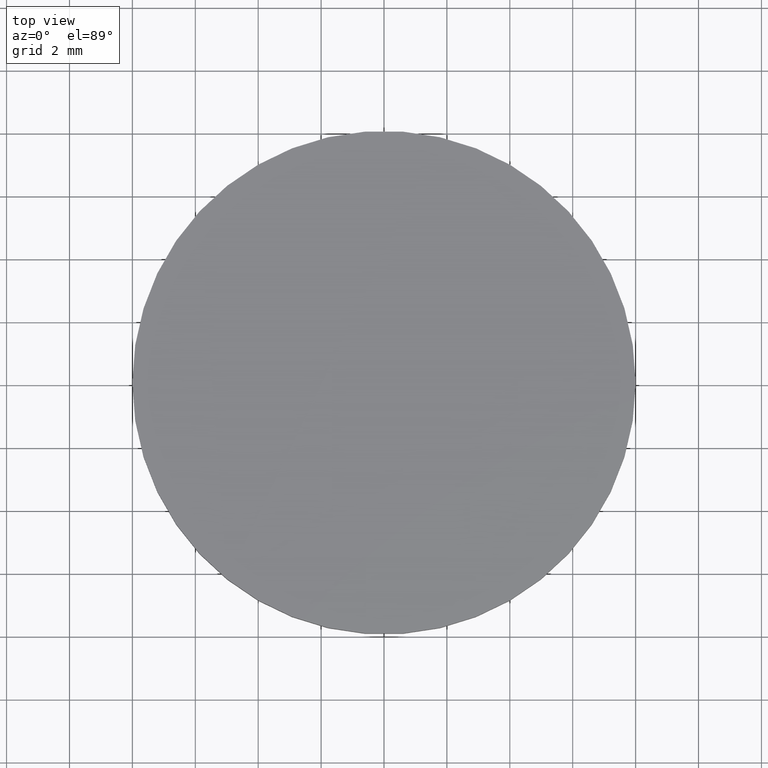
[diagram: clean part render]
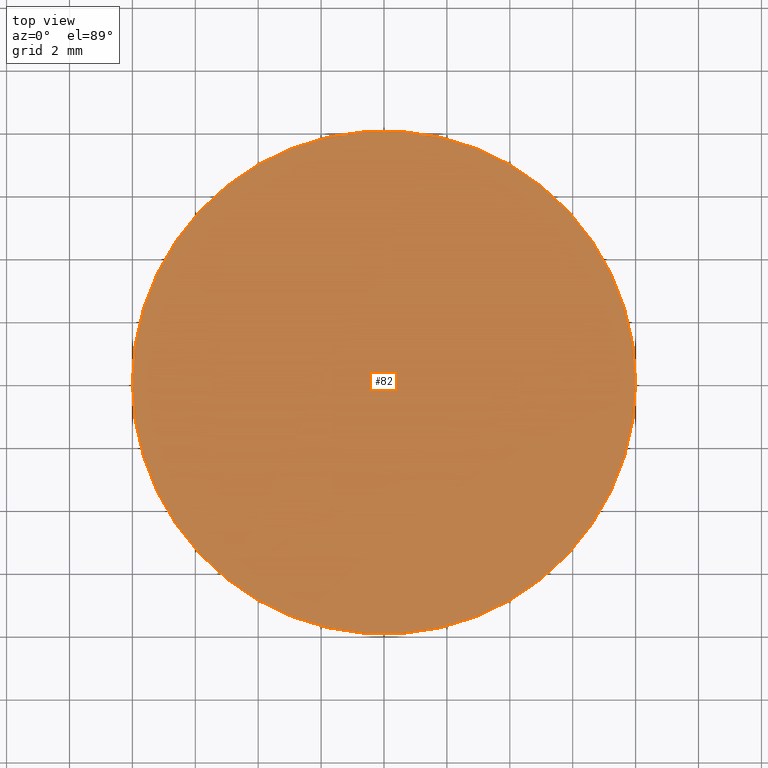
[diagram: same view with one face highlighted and labeled with its STEP entity id]
A machine part, top view. The second image highlights one B-rep face of the part: STEP entity #82.
In plain terms, the highlighted planar face has unit normal (0, 0, -1).
Its self-contained STEP definition (entity closure, byte-faithful):
#82 = ADVANCED_FACE( '', ( #104 ), #105, .F. );
#104 = FACE_OUTER_BOUND( '', #126, .T. );
#105 = PLANE( '', #127 );
#126 = EDGE_LOOP( '', ( #162 ) );
#127 = AXIS2_PLACEMENT_3D( '', #163, #164, #165 );
#162 = ORIENTED_EDGE( '', *, *, #166, .T. );
#163 = CARTESIAN_POINT( '', ( -3.36766747301154E-016, 8.00000000000001, 5.50000000000000 ) );
#164 = DIRECTION( '', ( 6.12303176911189E-017, 0.000000000000000, -1.00000000000000 ) );
#165 = DIRECTION( '', ( -1.00000000000000, 0.000000000000000, -6.12303176911189E-017 ) );
#166 = EDGE_CURVE( '', #173, #173, #174, .T. );
#173 = VERTEX_POINT( '', #187 );
#174 = CIRCLE( '', #188, 8.00000000000001 );
#187 = CARTESIAN_POINT( '', ( 8.00000000000001, 0.000000000000000, 5.50000000000000 ) );
#188 = AXIS2_PLACEMENT_3D( '', #201, #202, #203 );
#201 = CARTESIAN_POINT( '', ( -3.36766747301154E-016, 0.000000000000000, 5.50000000000000 ) );
#202 = DIRECTION( '', ( -6.12303176911189E-017, 0.000000000000000, 1.00000000000000 ) );
#203 = DIRECTION( '', ( 1.00000000000000, 0.000000000000000, 6.12303176911189E-017 ) );